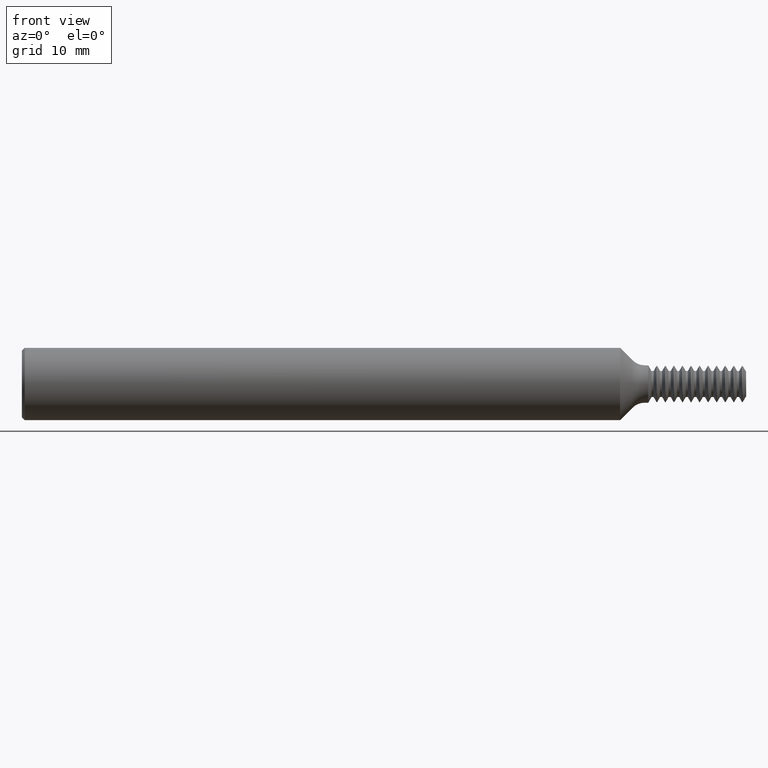
[diagram: clean part render]
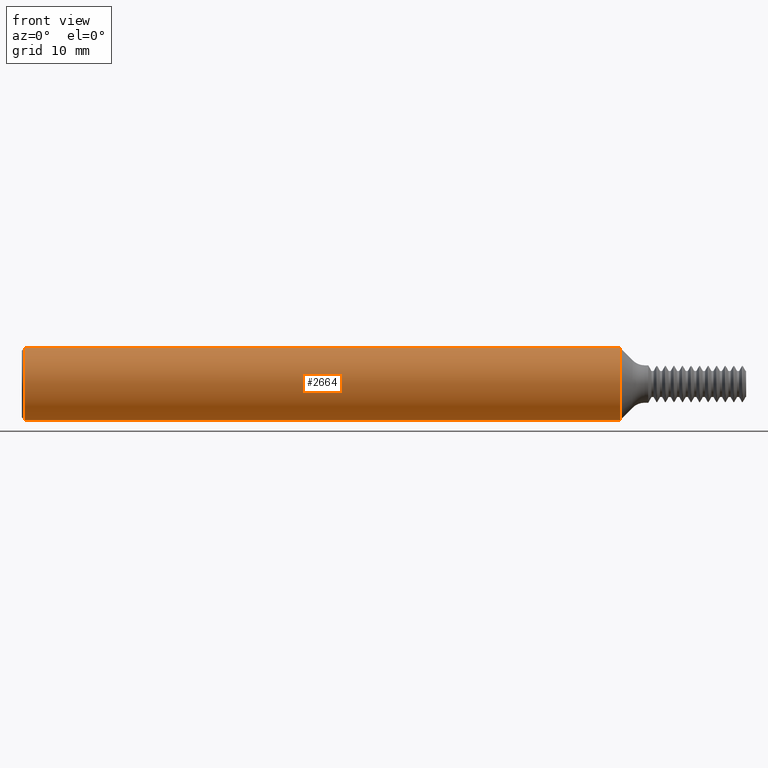
[diagram: same view with one face highlighted and labeled with its STEP entity id]
A machine part, front view. The second image highlights one B-rep face of the part: STEP entity #2664.
In plain terms, the highlighted cylindrical surface (edge-blend (fillet) strip) has radius 3.1712 mm, axis along (-1, -0, -0).
Its self-contained STEP definition (entity closure, byte-faithful):
#5 = VERTEX_POINT ( 'NONE', #1743 ) ;
#24 = DIRECTION ( 'NONE',  ( 0.000000000000000000, 0.000000000000000000, 1.000000000000000000 ) ) ;
#81 = EDGE_LOOP ( 'NONE', ( #1896, #2566, #1064, #974 ) ) ;
#121 = CARTESIAN_POINT ( 'NONE',  ( 0.009999999999999620304, 1.528971528735470422E-17, 0.1248500000000000026 ) ) ;
#271 = VECTOR ( 'NONE', #1482, 39.37007874015748143 ) ;
#315 = EDGE_CURVE ( 'NONE', #5, #1963, #2593, .T. ) ;
#423 = EDGE_CURVE ( 'NONE', #5, #680, #1808, .T. ) ;
#641 = CARTESIAN_POINT ( 'NONE',  ( 0.000000000000000000, 0.000000000000000000, 0.1248500000000000026 ) ) ;
#643 = CARTESIAN_POINT ( 'NONE',  ( 2.064999999999999947, 0.000000000000000000, 0.1248500000000000026 ) ) ;
#680 = VERTEX_POINT ( 'NONE', #1612 ) ;
#745 = EDGE_CURVE ( 'NONE', #2150, #680, #1098, .T. ) ;
#781 = EDGE_CURVE ( 'NONE', #1963, #2150, #1915, .T. ) ;
#798 = CARTESIAN_POINT ( 'NONE',  ( 0.000000000000000000, 0.000000000000000000, 0.000000000000000000 ) ) ;
#848 = DIRECTION ( 'NONE',  ( -1.000000000000000000, -0.000000000000000000, -0.000000000000000000 ) ) ;
#974 = ORIENTED_EDGE ( 'NONE', *, *, #745, .T. ) ;
#993 = CYLINDRICAL_SURFACE ( 'NONE', #1570, 0.1248500000000000026 ) ;
#1064 = ORIENTED_EDGE ( 'NONE', *, *, #781, .T. ) ;
#1098 = CIRCLE ( 'NONE', #2317, 0.1248500000000000026 ) ;
#1130 = CARTESIAN_POINT ( 'NONE',  ( 2.064999999999999947, 0.000000000000000000, 0.000000000000000000 ) ) ;
#1244 = VECTOR ( 'NONE', #1563, 39.37007874015748143 ) ;
#1260 = DIRECTION ( 'NONE',  ( 0.000000000000000000, 0.000000000000000000, 1.000000000000000000 ) ) ;
#1395 = DIRECTION ( 'NONE',  ( 0.000000000000000000, 0.000000000000000000, -1.000000000000000000 ) ) ;
#1427 = AXIS2_PLACEMENT_3D ( 'NONE', #1130, #848, #1260 ) ;
#1454 = CARTESIAN_POINT ( 'NONE',  ( 0.009999999999999620304, 0.000000000000000000, 0.000000000000000000 ) ) ;
#1482 = DIRECTION ( 'NONE',  ( -1.000000000000000000, -0.000000000000000000, -0.000000000000000000 ) ) ;
#1563 = DIRECTION ( 'NONE',  ( -1.000000000000000000, -0.000000000000000000, -0.000000000000000000 ) ) ;
#1570 = AXIS2_PLACEMENT_3D ( 'NONE', #798, #1634, #24 ) ;
#1612 = CARTESIAN_POINT ( 'NONE',  ( 0.009999999999999620304, 0.000000000000000000, -0.1248500000000000026 ) ) ;
#1634 = DIRECTION ( 'NONE',  ( -1.000000000000000000, -0.000000000000000000, -0.000000000000000000 ) ) ;
#1743 = CARTESIAN_POINT ( 'NONE',  ( 2.064999999999999947, 1.528971528735470422E-17, -0.1248500000000000026 ) ) ;
#1808 = LINE ( 'NONE', #1987, #1244 ) ;
#1896 = ORIENTED_EDGE ( 'NONE', *, *, #423, .F. ) ;
#1915 = LINE ( 'NONE', #641, #271 ) ;
#1963 = VERTEX_POINT ( 'NONE', #643 ) ;
#1987 = CARTESIAN_POINT ( 'NONE',  ( 0.000000000000000000, 1.528971528735470422E-17, -0.1248500000000000026 ) ) ;
#2150 = VERTEX_POINT ( 'NONE', #121 ) ;
#2256 = FACE_OUTER_BOUND ( 'NONE', #81, .T. ) ;
#2317 = AXIS2_PLACEMENT_3D ( 'NONE', #1454, #2427, #1395 ) ;
#2427 = DIRECTION ( 'NONE',  ( 1.000000000000000000, 0.000000000000000000, 0.000000000000000000 ) ) ;
#2566 = ORIENTED_EDGE ( 'NONE', *, *, #315, .T. ) ;
#2593 = CIRCLE ( 'NONE', #1427, 0.1248500000000000026 ) ;
#2664 = ADVANCED_FACE ( 'NONE', ( #2256 ), #993, .T. ) ;